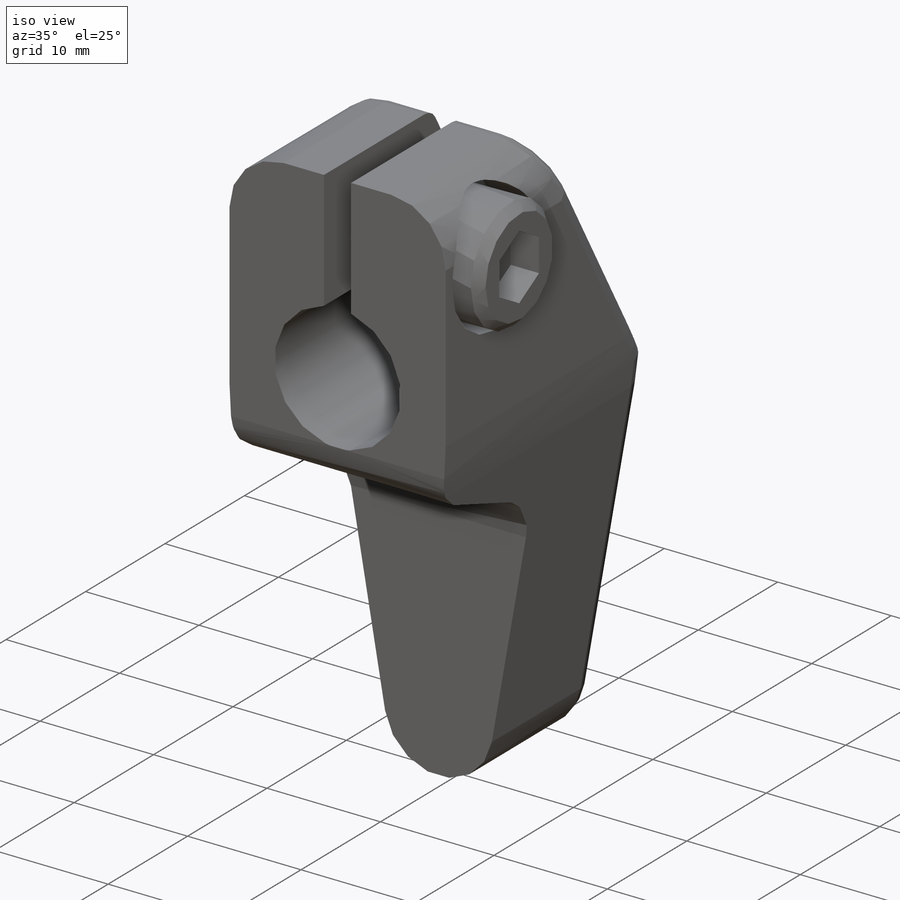
[diagram: iso view]
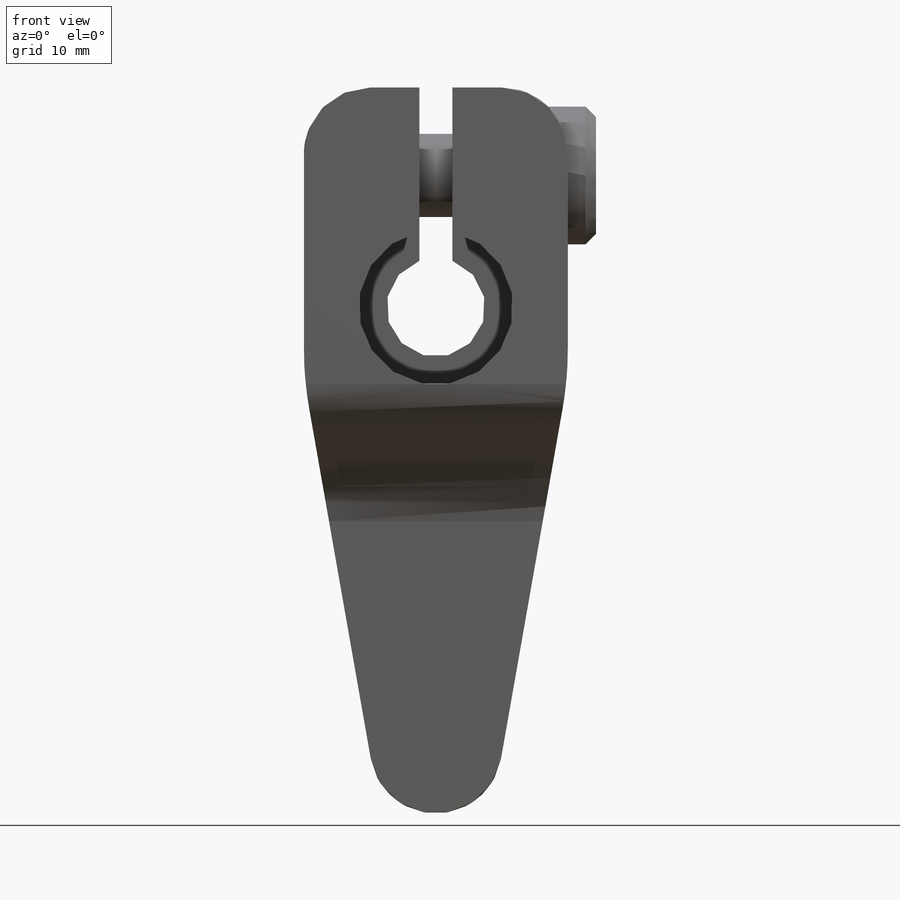
[diagram: front view]
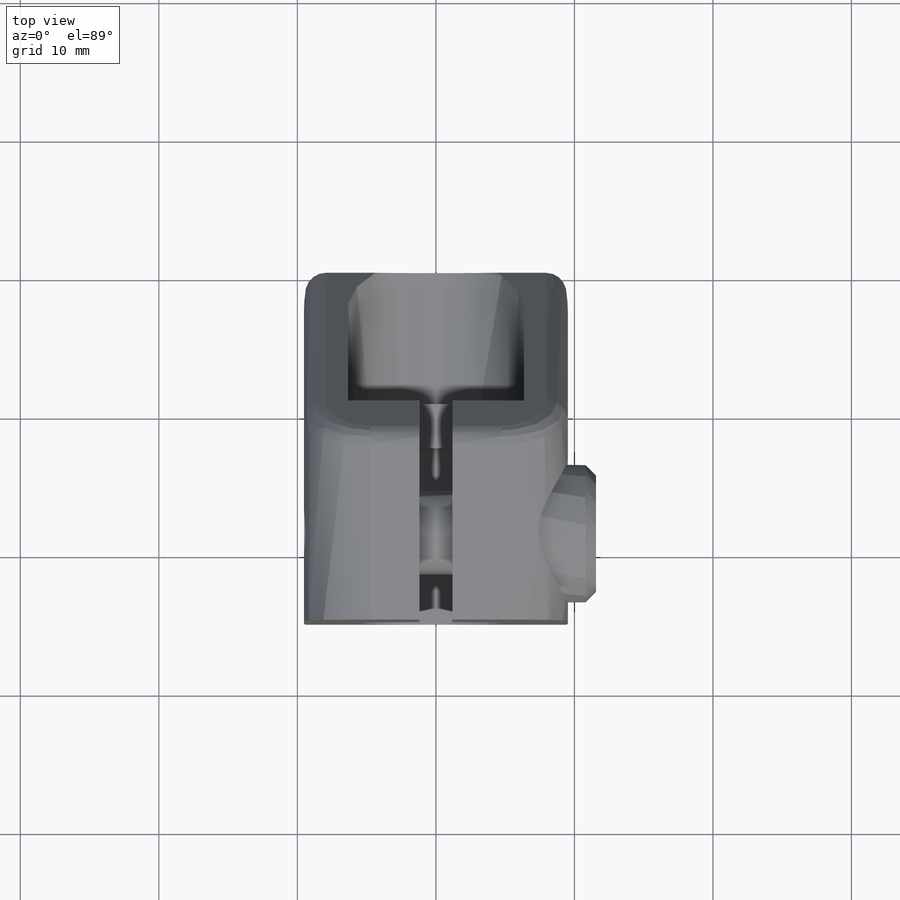
[diagram: top view]
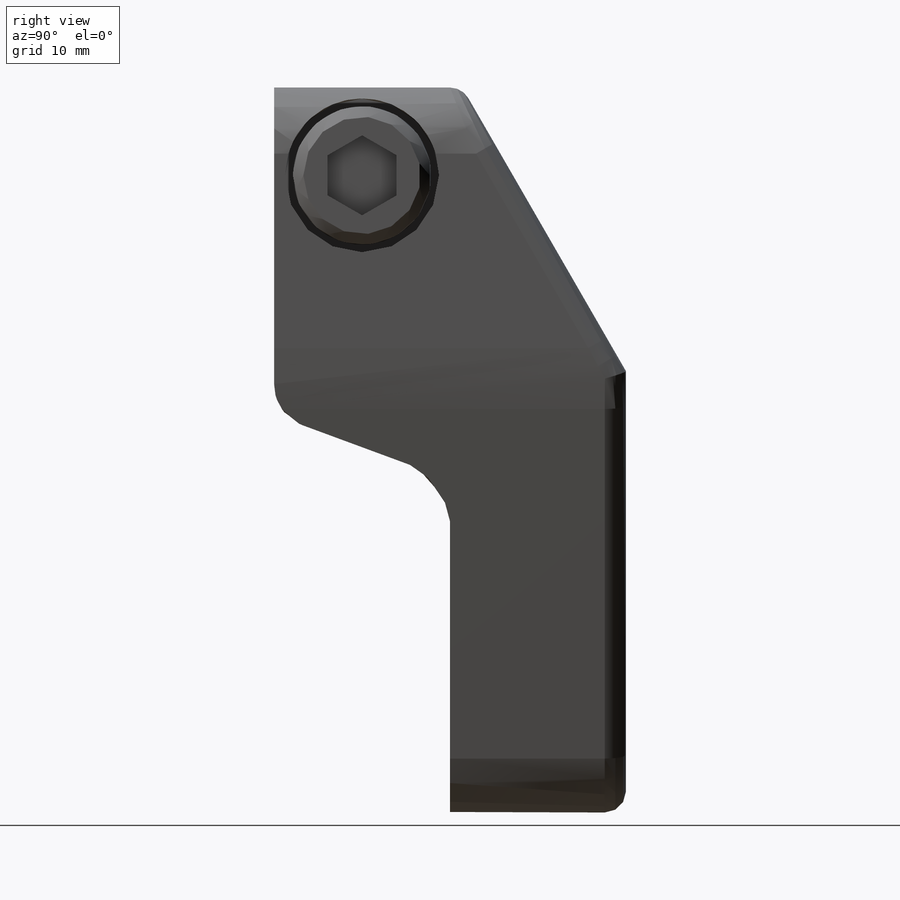
[diagram: right view]
SOLIDWORKS PART (.sldprt)
format: sldprt  version: not decoded by parser v0  size: 365,056 bytes
history: native  units: mm
features: sketch x8, cut_extrude x4, fillet x3, extrude x2, material x1, plane x1, cut_revolve x1, revolve x1, chamfer x1 (+13 scaffold rows collapsed)
feature tree (35):
  scaffold x13  (default folders/planes/origin — collapsed)
  material  "Alloy Steel"
  sketch  "Sketch1"  dims[c1.D1=11.1506mm c1.D2=4.7752mm c1.D6=25.4mm c1.D3=31.75mm c1.D4=50.8mm c1.D5=15.875mm c1.D7=19.05mm c2.D4=21.0312mm]
  extrude  "Extrude1"  Depth=25.4mm
  fillet  "Fillet1"  Radius=4.7752mm
  sketch  "Sketch2"  dims[c1.D1=1.524mm c1.D4=3.175mm c1.D9=3.048mm c1.D10=3.302mm c1.D2=38.1mm c1.D3=36.4998mm c2.D3=30.0deg c2.D5=5.5372mm c2.D6=8.8138mm c2.D7=5.5372mm c2.D8=33.274mm c2.D10=38.1mm c3.D8=12.7mm c3.D2=12.7mm c3.D9=21.082mm c3.D11=~20.660906mm]
  cut_extrude  "Cut-Extrude1"  [1 undecoded]
  sketch  "Sketch3"  dims[D1=12.7mm]
  cut_extrude  "Cut-Extrude2"  Depth=15.875mm
  sketch  "Sketch10"  dims[D1=7.1374mm]
  extrude  "Extrude3"  Depth=12.7mm
  sketch  "Sketch4"  dims[D1=2.3876mm]
  cut_extrude  "Cut-Extrude3"  Depth=44.45mm
  fillet  "Fillet4"  Radius=25.4mm
  fillet  "Fillet3"  Radius=1.524mm
  plane  "Plane1"  Offset=9.525mm
  sketch  "Sketch6"  dims[c1.D1=25.4mm c1.D2=9.525mm c1.D3=~15.982932mm c2.D1=11.0998mm c2.D2=3.9624mm c2.D3=6.7564mm c2.D4=6.35mm c2.D5=6.35mm c2.D6=5.0292mm]
  cut_revolve  "Cut-Revolve1"  Angle=360deg
  sketch  "Sketch7"  dims[D1=6.0mm D2=10.0mm D3=6.0mm D4=14.0mm]
  revolve  "Revolve1"  Angle=360deg
  chamfer  "Chamfer1"  Distance=0.762mm Angle=45deg
  sketch  "Sketch8"  dims[D1=5.0mm]
  cut_extrude  "Cut-Extrude5"  Depth=2.5mm
decode coverage: 19 of 20 modeling features carry decoded parameters
note: ~ marks probable driven/reference dimensions
note: 1 parameter value undecoded
note: suppression state not decoded; provenance and decode notes live in map.json
